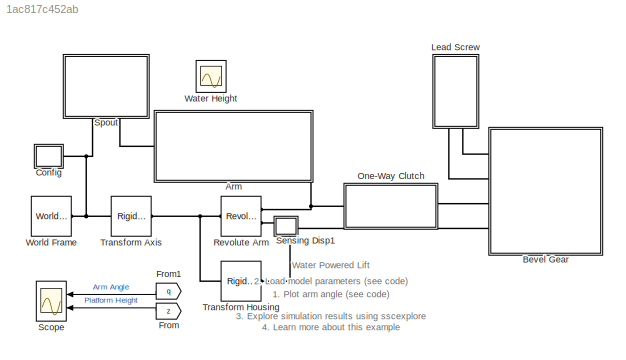
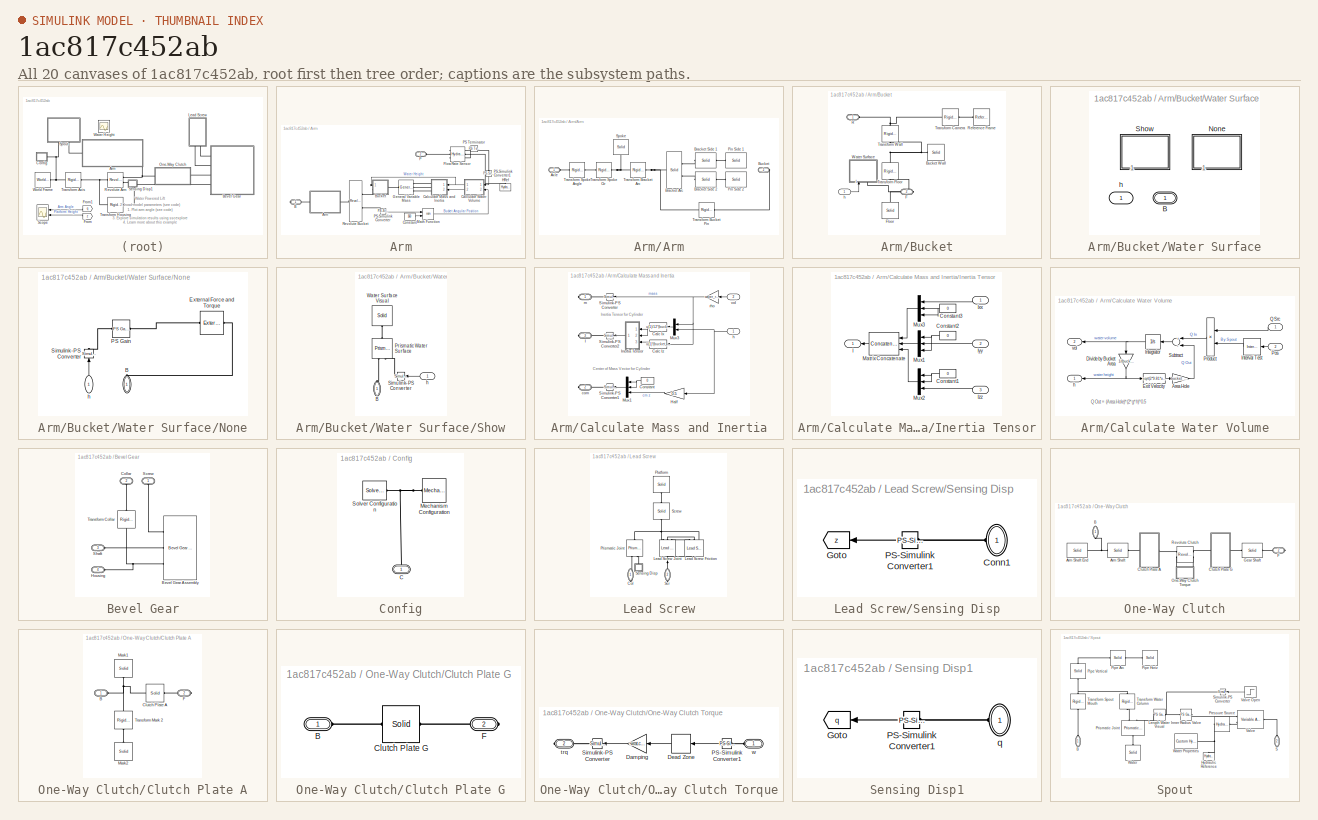
[diagram: thumbnail index - all 20 canvases of the model, root first then tree order]
MODEL slx_1ac817c452ab
KIND model
CONFIG AbsTol = 1e-4
CONFIG EnableMultiTasking = on
CONFIG FixedStep = auto
CONFIG MaxStep = 1e-2
CONFIG MinStep = auto
CONFIG RelTol = 1e-3
CONFIG SampleTimeConstraint = Unconstrained
CONFIG Solver = ode15s
CONFIG SolverName = ode15s
CONFIG StartTime = 0.0
CONFIG StopTime = 50
BLOCK [SubSystem] Arm
  Ports = [0, 0, 0, 0, 0, 1, 1]
  RequestExecContextInheritance = off
BLOCK [SubSystem] Arm/Arm
  Ports = [0, 0, 0, 0, 0, 1, 1]
  RequestExecContextInheritance = off
BLOCK [PMIOPort] Arm/Arm/Axle
  Side = Left
BLOCK [Reference] Arm/Arm/Bracket Arc  REF=sm_lib/Body Elements/Solid
  Ports = [0, 0, 0, 0, 0, 2, 1]
  SourceBlock = sm_lib/Body Elements/Solid
  SourceProductBaseCode = MS
  SourceProductName = Simscape Multibody
  SourceType = Solid
BLOCK [Reference] Arm/Arm/Bracket Side 1  REF=sm_lib/Body Elements/Solid
  Ports = [0, 0, 0, 0, 0, 1, 1]
  SourceBlock = sm_lib/Body Elements/Solid
  SourceProductBaseCode = MS
  SourceProductName = Simscape Multibody
  SourceType = Solid
BLOCK [Reference] Arm/Arm/Bracket Side 2  REF=sm_lib/Body Elements/Solid
  Ports = [0, 0, 0, 0, 0, 1, 1]
  SourceBlock = sm_lib/Body Elements/Solid
  SourceProductBaseCode = MS
  SourceProductName = Simscape Multibody
  SourceType = Solid
BLOCK [PMIOPort] Arm/Arm/Bucket
  Port = 2
  Side = Right
BLOCK [Reference] Arm/Arm/Pin Side 1  REF=sm_lib/Body Elements/Solid
  Ports = [0, 0, 0, 0, 0, 1]
  SourceBlock = sm_lib/Body Elements/Solid
  SourceProductBaseCode = MS
  SourceProductName = Simscape Multibody
  SourceType = Solid
BLOCK [Reference] Arm/Arm/Pin Side 2  REF=sm_lib/Body Elements/Solid
  Ports = [0, 0, 0, 0, 0, 1]
  SourceBlock = sm_lib/Body Elements/Solid
  SourceProductBaseCode = MS
  SourceProductName = Simscape Multibody
  SourceType = Solid
BLOCK [Reference] Arm/Arm/Spoke  REF=sm_lib/Body Elements/Solid
  Ports = [0, 0, 0, 0, 0, 0, 1]
  SourceBlock = sm_lib/Body Elements/Solid
  SourceProductBaseCode = MS
  SourceProductName = Simscape Multibody
  SourceType = Solid
BLOCK [Reference] Arm/Arm/Transform Bracket Arc  REF=sm_lib/Frames and
Transforms/Rigid
Transform
  Ports = [0, 0, 0, 0, 0, 1, 1]
  SourceBlock = sm_lib/Frames and\nTransforms/Rigid\nTransform
  SourceProductBaseCode = MS
  SourceProductName = Simscape Multibody
  SourceType = Rigid\nTransform
BLOCK [Reference] Arm/Arm/Transform Bucket Pin  REF=sm_lib/Frames and
Transforms/Rigid
Transform
  Ports = [0, 0, 0, 0, 0, 1, 1]
  SourceBlock = sm_lib/Frames and\nTransforms/Rigid\nTransform
  SourceProductBaseCode = MS
  SourceProductName = Simscape Multibody
  SourceType = Rigid\nTransform
BLOCK [Reference] Arm/Arm/Transform Spoke Angle  REF=sm_lib/Frames and
Transforms/Rigid
Transform
  Ports = [0, 0, 0, 0, 0, 1, 1]
  SourceBlock = sm_lib/Frames and\nTransforms/Rigid\nTransform
  SourceProductBaseCode = MS
  SourceProductName = Simscape Multibody
  SourceType = Rigid\nTransform
BLOCK [Reference] Arm/Arm/Transform Spoke Ctr  REF=sm_lib/Frames and
Transforms/Rigid
Transform
  Ports = [0, 0, 0, 0, 0, 1, 1]
  SourceBlock = sm_lib/Frames and\nTransforms/Rigid\nTransform
  SourceProductBaseCode = MS
  SourceProductName = Simscape Multibody
  SourceType = Rigid\nTransform
BLOCK [PMIOPort] Arm/B
  Side = Right
BLOCK [SubSystem] Arm/Bucket
  Ports = [1, 0, 0, 0, 0, 1, 1]
  RequestExecContextInheritance = off
BLOCK [Reference] Arm/Bucket/Bucket Wall  REF=sm_lib/Body Elements/Solid
  Ports = [0, 0, 0, 0, 0, 0, 1]
  SourceBlock = sm_lib/Body Elements/Solid
  SourceProductBaseCode = MS
  SourceProductName = Simscape Multibody
  SourceType = Solid
BLOCK [PMIOPort] Arm/Bucket/F
  Port = 2
  Side = Right
  Tag = PMCPort
BLOCK [Reference] Arm/Bucket/Floor  REF=sm_lib/Body Elements/Solid
  Ports = [0, 0, 0, 0, 0, 0, 1]
  SourceBlock = sm_lib/Body Elements/Solid
  SourceProductBaseCode = MS
  SourceProductName = Simscape Multibody
  SourceType = Solid
BLOCK [PMIOPort] Arm/Bucket/R
  Side = Left
BLOCK [Reference] Arm/Bucket/Reference Frame  REF=sm_lib/Frames and
Transforms/Reference
Frame
  Ports = [0, 0, 0, 0, 0, 0, 1]
  SourceBlock = sm_lib/Frames and\nTransforms/Reference\nFrame
  SourceProductBaseCode = MS
  SourceProductName = Simscape Multibody
  SourceType = Reference\nFrame
BLOCK [Reference] Arm/Bucket/Transform Camera  REF=sm_lib/Frames and
Transforms/Rigid
Transform
  Ports = [0, 0, 0, 0, 0, 1, 1]
  SourceBlock = sm_lib/Frames and\nTransforms/Rigid\nTransform
  SourceProductBaseCode = MS
  SourceProductName = Simscape Multibody
  SourceType = Rigid\nTransform
BLOCK [Reference] Arm/Bucket/Transform Floor  REF=sm_lib/Frames and
Transforms/Rigid
Transform
  Ports = [0, 0, 0, 0, 0, 1, 1]
  SourceBlock = sm_lib/Frames and\nTransforms/Rigid\nTransform
  SourceProductBaseCode = MS
  SourceProductName = Simscape Multibody
  SourceType = Rigid\nTransform
BLOCK [Reference] Arm/Bucket/Transform Wall  REF=sm_lib/Frames and
Transforms/Rigid
Transform
  Ports = [0, 0, 0, 0, 0, 1, 1]
  SourceBlock = sm_lib/Frames and\nTransforms/Rigid\nTransform
  SourceProductBaseCode = MS
  SourceProductName = Simscape Multibody
  SourceType = Rigid\nTransform
BLOCK [SubSystem] Arm/Bucket/Water Surface
  LabelModeActiveChoice = Show
  Ports = [1, 0, 0, 0, 0, 1]
  RequestExecContextInheritance = off
  Variant = on
  VariantControl = Variant1
  VariantControlMode = Label
BLOCK [PMIOPort] Arm/Bucket/Water Surface/ B 
  Side = Left
BLOCK [SubSystem] Arm/Bucket/Water Surface/None
  Ports = [1, 0, 0, 0, 0, 1]
  RequestExecContextInheritance = off
  VariantControl = None
BLOCK [PMIOPort] Arm/Bucket/Water Surface/None/B
  Side = Left
BLOCK [Reference] Arm/Bucket/Water Surface/None/External Force and Torque  REF=sm_lib/Forces and
Torques/External Force
and Torque
  Ports = [0, 0, 0, 0, 0, 1, 1]
  SourceBlock = sm_lib/Forces and\nTorques/External Force\nand Torque
  SourceProductBaseCode = MS
  SourceProductName = Simscape Multibody
  SourceType = External Force\nand Torque
BLOCK [Reference] Arm/Bucket/Water Surface/None/PS Gain  REF=fl_ps_legacy_lib/Legacy Physical
Signals/Functions/PS Gain
  Ports = [0, 0, 0, 0, 0, 1, 1]
  SourceBlock = fl_ps_legacy_lib/Legacy Physical\nSignals/Functions/PS Gain
  SourceProductBaseCode = SS
  SourceProductName = Simscape
  SourceType = PS Gain
BLOCK [Reference] Arm/Bucket/Water Surface/None/Simulink-PS Converter  REF=nesl_utility/Simulink-PS
Converter
  Ports = [1, 0, 0, 0, 0, 0, 1]
  SourceBlock = nesl_utility/Simulink-PS\nConverter
  SourceProductBaseCode = SS
  SourceProductName = Simscape
  SourceType = Simulink-PS\nConverter
BLOCK [Inport] Arm/Bucket/Water Surface/None/h
  IconDisplay = Port number
BLOCK [SubSystem] Arm/Bucket/Water Surface/Show
  Ports = [1, 0, 0, 0, 0, 1]
  RequestExecContextInheritance = off
  VariantControl = Show
BLOCK [PMIOPort] Arm/Bucket/Water Surface/Show/B
  Side = Left
BLOCK [Reference] Arm/Bucket/Water Surface/Show/Prismatic Water Surface  REF=sm_lib/Joints/Prismatic
Joint
  Ports = [0, 0, 0, 0, 0, 2, 1]
  SourceBlock = sm_lib/Joints/Prismatic\nJoint
  SourceProductBaseCode = MS
  SourceProductName = Simscape Multibody
  SourceType = Prismatic\nJoint
BLOCK [Reference] Arm/Bucket/Water Surface/Show/Simulink-PS Converter  REF=nesl_utility/Simulink-PS
Converter
  Ports = [1, 0, 0, 0, 0, 0, 1]
  SourceBlock = nesl_utility/Simulink-PS\nConverter
  SourceProductBaseCode = SS
  SourceProductName = Simscape
  SourceType = Simulink-PS\nConverter
BLOCK [Reference] Arm/Bucket/Water Surface/Show/Water Surface Visual  REF=sm_lib/Body Elements/Solid
  Ports = [0, 0, 0, 0, 0, 0, 1]
  SourceBlock = sm_lib/Body Elements/Solid
  SourceProductBaseCode = MS
  SourceProductName = Simscape Multibody
  SourceType = Solid
BLOCK [Inport] Arm/Bucket/Water Surface/Show/h
  IconDisplay = Port number
BLOCK [Inport] Arm/Bucket/Water Surface/h 
  IconDisplay = Port number
BLOCK [Inport] Arm/Bucket/h
  IconDisplay = Port number
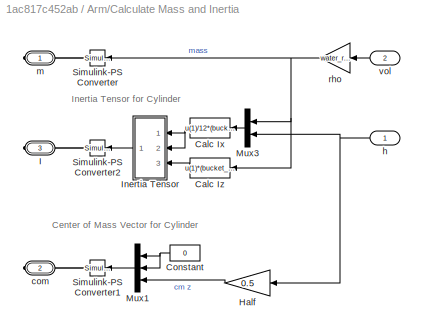
BLOCK [SubSystem] Arm/Calculate Mass and Inertia
  Ports = [2, 0, 0, 0, 0, 0, 3]
  RequestExecContextInheritance = off
BLOCK [Fcn] Arm/Calculate Mass and Inertia/Calc Ix
  Expr = u(1)/12*(bucket_side^2+u(2)^2)
BLOCK [Fcn] Arm/Calculate Mass and Inertia/Calc Iz
  Expr = u(1)*(bucket_side^2+bucket_side^2)/12
BLOCK [Constant] Arm/Calculate Mass and Inertia/Constant
  Value = 0
BLOCK [Gain] Arm/Calculate Mass and Inertia/Half
  Gain = 0.5
  OutDataTypeStr = Inherit: Inherit via internal rule
  ParamDataTypeStr = Inherit: Inherit via internal rule
  SaturateOnIntegerOverflow = off
BLOCK [PMIOPort] Arm/Calculate Mass and Inertia/I
  Port = 3
  Side = Right
BLOCK [SubSystem] Arm/Calculate Mass and Inertia/Inertia Tensor
  Ports = [3, 1]
  RequestExecContextInheritance = off
BLOCK [Constant] Arm/Calculate Mass and Inertia/Inertia Tensor/Constant1
  Value = 0
BLOCK [Constant] Arm/Calculate Mass and Inertia/Inertia Tensor/Constant2
  Value = 0
BLOCK [Constant] Arm/Calculate Mass and Inertia/Inertia Tensor/Constant3
  Value = 0
BLOCK [Outport] Arm/Calculate Mass and Inertia/Inertia Tensor/I
  IconDisplay = Port number
BLOCK [Inport] Arm/Calculate Mass and Inertia/Inertia Tensor/Ixx
  IconDisplay = Port number
BLOCK [Inport] Arm/Calculate Mass and Inertia/Inertia Tensor/Iyy
  IconDisplay = Port number
  Port = 2
BLOCK [Inport] Arm/Calculate Mass and Inertia/Inertia Tensor/Izz
  IconDisplay = Port number
  Port = 3
BLOCK [Concatenate] Arm/Calculate Mass and Inertia/Inertia Tensor/Matrix Concatenate
  ConcatenateDimension = 2
  Mode = Multidimensional array
  NumInputs = 3
  Ports = [3, 1]
BLOCK [Mux] Arm/Calculate Mass and Inertia/Inertia Tensor/Mux1
  DisplayOption = bar
  Inputs = 3
  Ports = [3, 1]
BLOCK [Mux] Arm/Calculate Mass and Inertia/Inertia Tensor/Mux2
  DisplayOption = bar
  Inputs = 3
  Ports = [3, 1]
BLOCK [Mux] Arm/Calculate Mass and Inertia/Inertia Tensor/Mux3
  DisplayOption = bar
  Inputs = 3
  Ports = [3, 1]
BLOCK [Mux] Arm/Calculate Mass and Inertia/Mux1
  DisplayOption = bar
  Inputs = 3
  Ports = [3, 1]
BLOCK [Mux] Arm/Calculate Mass and Inertia/Mux3
  DisplayOption = bar
  Inputs = 2
  Ports = [2, 1]
BLOCK [Reference] Arm/Calculate Mass and Inertia/Simulink-PS Converter  REF=nesl_utility/Simulink-PS
Converter
  Ports = [1, 0, 0, 0, 0, 0, 1]
  SourceBlock = nesl_utility/Simulink-PS\nConverter
  SourceProductBaseCode = SS
  SourceProductName = Simscape
  SourceType = Simulink-PS\nConverter
BLOCK [Reference] Arm/Calculate Mass and Inertia/Simulink-PS Converter1  REF=nesl_utility/Simulink-PS
Converter
  Ports = [1, 0, 0, 0, 0, 0, 1]
  SourceBlock = nesl_utility/Simulink-PS\nConverter
  SourceProductBaseCode = SS
  SourceProductName = Simscape
  SourceType = Simulink-PS\nConverter
BLOCK [Reference] Arm/Calculate Mass and Inertia/Simulink-PS Converter2  REF=nesl_utility/Simulink-PS
Converter
  Ports = [1, 0, 0, 0, 0, 0, 1]
  SourceBlock = nesl_utility/Simulink-PS\nConverter
  SourceProductBaseCode = SS
  SourceProductName = Simscape
  SourceType = Simulink-PS\nConverter
BLOCK [PMIOPort] Arm/Calculate Mass and Inertia/com
  Port = 2
  Side = Right
BLOCK [Inport] Arm/Calculate Mass and Inertia/h
  IconDisplay = Port number
BLOCK [PMIOPort] Arm/Calculate Mass and Inertia/m
  Side = Right
BLOCK [Gain] Arm/Calculate Mass and Inertia/rho
  Gain = water_rho
  OutDataTypeStr = Inherit: Inherit via internal rule
  ParamDataTypeStr = Inherit: Inherit via internal rule
  SaturateOnIntegerOverflow = off
BLOCK [Inport] Arm/Calculate Mass and Inertia/vol
  IconDisplay = Port number
  Port = 2
BLOCK [SubSystem] Arm/Calculate Water Volume
  Ports = [2, 2]
  RequestExecContextInheritance = off
BLOCK [Gain] Arm/Calculate Water Volume/Area Hole
  Gain = bucket_hole_side^2
  OutDataTypeStr = Inherit: Inherit via internal rule
  ParamDataTypeStr = Inherit: Inherit via internal rule
  SaturateOnIntegerOverflow = off
BLOCK [Gain] Arm/Calculate Water Volume/Divide by Bucket Area
  Gain = 1/(bucket_side^2)
  OutDataTypeStr = Inherit: Inherit via internal rule
  ParamDataTypeStr = Inherit: Inherit via internal rule
  SaturateOnIntegerOverflow = off
BLOCK [Fcn] Arm/Calculate Water Volume/Exit Velocity
  Expr = sqrt(2*9.81*u(1))
BLOCK [Integrator] Arm/Calculate Water Volume/Integrator
  LimitOutput = on
  LowerSaturationLimit = 0
  Ports = [1, 1]
  UpperSaturationLimit = (bucket_side^2)*bucket_height
BLOCK [Reference] Arm/Calculate Water Volume/Interval Test  REF=simulink/Logic and Bit
Operations/Interval Test
  Ports = [1, 1]
  SourceBlock = simulink/Logic and Bit\nOperations/Interval Test
  SourceProductBaseCode = SL
  SourceProductName = Simulink
  SourceType = Interval Test
BLOCK [Inport] Arm/Calculate Water Volume/Pos
  IconDisplay = Port number
  Port = 2
BLOCK [Product] Arm/Calculate Water Volume/Product
  InputSameDT = off
  OutDataTypeStr = Inherit: Inherit via internal rule
  Ports = [2, 1]
  RndMeth = Floor
  SaturateOnIntegerOverflow = off
BLOCK [Inport] Arm/Calculate Water Volume/Q Src
  IconDisplay = Port number
BLOCK [Sum] Arm/Calculate Water Volume/Subtract
  InputSameDT = off
  Inputs = +-
  OutDataTypeStr = Inherit: Inherit via internal rule
  Ports = [2, 1]
  SaturateOnIntegerOverflow = off
BLOCK [Outport] Arm/Calculate Water Volume/h
  IconDisplay = Port number
BLOCK [Outport] Arm/Calculate Water Volume/vol
  IconDisplay = Port number
  Port = 2
BLOCK [Constant] Arm/Constant
  Value = 360
BLOCK [Reference] Arm/Flow Rate Sensor  REF=fl_lib/Hydraulic/Hydraulic Sensors/Hydraulic Flow Rate
Sensor
  Ports = [0, 0, 0, 0, 0, 1, 3]
  SourceBlock = fl_lib/Hydraulic/Hydraulic Sensors/Hydraulic Flow Rate\nSensor
  SourceProductBaseCode = SS
  SourceProductName = Simscape
  SourceType = Hydraulic Flow Rate\nSensor
BLOCK [Reference] Arm/General Variable Mass  REF=sm_lib/Body Elements/Variable Mass/General
Variable Mass
  Ports = [0, 0, 0, 0, 0, 3, 1]
  SourceBlock = sm_lib/Body Elements/Variable Mass/General\nVariable Mass
  SourceProductBaseCode = MS
  SourceProductName = Simscape Multibody
  SourceType = General\nVariable Mass
BLOCK [Reference] Arm/HRef  REF=fl_lib/Hydraulic/Hydraulic Elements/Hydraulic Reference
  Ports = [0, 0, 0, 0, 0, 1]
  SourceBlock = fl_lib/Hydraulic/Hydraulic Elements/Hydraulic Reference
  SourceProductBaseCode = SS
  SourceProductName = Simscape
  SourceType = Hydraulic Reference
BLOCK [Math] Arm/Math Function
  Operator = rem
  Ports = [2, 1]
BLOCK [PMIOPort] Arm/P
  Port = 2
  Side = Left
BLOCK [Reference] Arm/PS Terminator  REF=fl_lib/Physical Signals/Sinks/PS Terminator
  Ports = [0, 0, 0, 0, 0, 1]
  SourceBlock = fl_lib/Physical Signals/Sinks/PS Terminator
  SourceProductBaseCode = SS
  SourceProductName = Simscape
  SourceType = PS Terminator
BLOCK [Reference] Arm/PS-Simulink Converter  REF=nesl_utility/PS-Simulink
Converter
  Ports = [0, 1, 0, 0, 0, 1]
  SourceBlock = nesl_utility/PS-Simulink\nConverter
  SourceProductBaseCode = SS
  SourceProductName = Simscape
  SourceType = PS-Simulink\nConverter
BLOCK [Reference] Arm/PS-Simulink Converter1  REF=nesl_utility/PS-Simulink
Converter
  Ports = [0, 1, 0, 0, 0, 1]
  SourceBlock = nesl_utility/PS-Simulink\nConverter
  SourceProductBaseCode = SS
  SourceProductName = Simscape
  SourceType = PS-Simulink\nConverter
BLOCK [Reference] Arm/Revolute Bucket  REF=sm_lib/Joints/Revolute Joint
  Ports = [0, 0, 0, 0, 0, 1, 2]
  SourceBlock = sm_lib/Joints/Revolute Joint
  SourceProductBaseCode = MS
  SourceProductName = Simscape Multibody
  SourceType = Revolute Joint
BLOCK [SubSystem] Bevel Gear
  Ports = [0, 0, 0, 0, 0, 4]
  RequestExecContextInheritance = off
BLOCK [Reference] Bevel Gear/Bevel Gear Assembly  REF=Multibody_Parts_Lib/Gears/Assemblies/Bevel Gear Assembly
  Ports = [0, 0, 0, 0, 0, 3]
  SourceBlock = Multibody_Parts_Lib/Gears/Assemblies/Bevel Gear Assembly
  SourceProductName = Simscape Multibody Parts Library
  SourceType = Bevel Gear Assembly
  Tag = PublishSubsystem
BLOCK [PMIOPort] Bevel Gear/Collar
  Port = 2
  Side = Left
BLOCK [PMIOPort] Bevel Gear/Housing
  Port = 4
  Side = Left
BLOCK [PMIOPort] Bevel Gear/Screw
  Side = Left
BLOCK [PMIOPort] Bevel Gear/Shaft
  Port = 3
  Side = Left
BLOCK [Reference] Bevel Gear/Transform Collar  REF=sm_lib/Frames and
Transforms/Rigid
Transform
  Ports = [0, 0, 0, 0, 0, 1, 1]
  SourceBlock = sm_lib/Frames and\nTransforms/Rigid\nTransform
  SourceProductBaseCode = MS
  SourceProductName = Simscape Multibody
  SourceType = Rigid\nTransform
BLOCK [SubSystem] Config
  Ports = [0, 0, 0, 0, 0, 1]
  RequestExecContextInheritance = off
BLOCK [PMIOPort] Config/C
  Side = Left
BLOCK [Reference] Config/Mechanism Configuration  REF=sm_lib/Utilities/Mechanism
Configuration
  Ports = [0, 0, 0, 0, 0, 0, 1]
  SourceBlock = sm_lib/Utilities/Mechanism\nConfiguration
  SourceProductBaseCode = MS
  SourceProductName = Simscape Multibody
  SourceType = Mechanism\nConfiguration
BLOCK [Reference] Config/Solver Configuration  REF=nesl_utility/Solver
Configuration
  Ports = [0, 0, 0, 0, 0, 0, 1]
  SourceBlock = nesl_utility/Solver\nConfiguration
  SourceProductBaseCode = SS
  SourceProductName = Simscape
  SourceType = Solver\nConfiguration
BLOCK [From] From
  GotoTag = z
  TagVisibility = global
BLOCK [From] From1
  GotoTag = q
  TagVisibility = global
BLOCK [SubSystem] Lead Screw
  Ports = [0, 0, 0, 0, 0, 0, 2]
  RequestExecContextInheritance = off
BLOCK [PMIOPort] Lead Screw/Col
  Side = Right
BLOCK [Reference] Lead Screw/Lead Screw Friction  REF=Multibody_Parts_Lib/Gears/Forces/Lead Screw Friction
  AttributesFormatString = Lead Angle = 14.856 deg\nKinetic Friction = 0.300
  Ports = [0, 0, 0, 0, 0, 3, 1]
  SourceBlock = Multibody_Parts_Lib/Gears/Forces/Lead Screw Friction
  SourceProductName = Simscape Multibody Parts Library
  SourceType = Lead Screw Friction
  Tag = PublishSubsystem
BLOCK [Reference] Lead Screw/Lead Screw Joint  REF=sm_lib/Joints/Lead Screw
Joint
  Ports = [0, 0, 0, 0, 0, 1, 3]
  SourceBlock = sm_lib/Joints/Lead Screw\nJoint
  SourceProductBaseCode = MS
  SourceProductName = Simscape Multibody
  SourceType = Lead Screw\nJoint
BLOCK [Reference] Lead Screw/Platform  REF=sm_lib/Body Elements/Solid
  Ports = [0, 0, 0, 0, 0, 0, 1]
  SourceBlock = sm_lib/Body Elements/Solid
  SourceProductBaseCode = MS
  SourceProductName = Simscape Multibody
  SourceType = Solid
BLOCK [Reference] Lead Screw/Prismatic Joint  REF=sm_lib/Joints/Prismatic
Joint
  Ports = [0, 0, 0, 0, 0, 1, 2]
  SourceBlock = sm_lib/Joints/Prismatic\nJoint
  SourceProductBaseCode = MS
  SourceProductName = Simscape Multibody
  SourceType = Prismatic\nJoint
BLOCK [PMIOPort] Lead Screw/Scr
  Port = 2
  Side = Right
BLOCK [Reference] Lead Screw/Screw  REF=sm_lib/Body Elements/Solid
  Ports = [0, 0, 0, 0, 0, 1, 1]
  SourceBlock = sm_lib/Body Elements/Solid
  SourceProductBaseCode = MS
  SourceProductName = Simscape Multibody
  SourceType = Solid
BLOCK [SubSystem] Lead Screw/Sensing Disp
  Ports = [0, 0, 0, 0, 0, 1]
  RequestExecContextInheritance = off
BLOCK [PMIOPort] Lead Screw/Sensing Disp/Conn1
  Side = Left
BLOCK [Goto] Lead Screw/Sensing Disp/Goto
  GotoTag = z
  TagVisibility = global
BLOCK [Reference] Lead Screw/Sensing Disp/PS-Simulink Converter1  REF=nesl_utility/PS-Simulink
Converter
  Ports = [0, 1, 0, 0, 0, 1]
  SourceBlock = nesl_utility/PS-Simulink\nConverter
  SourceProductBaseCode = SS
  SourceProductName = Simscape
  SourceType = PS-Simulink\nConverter
BLOCK [SubSystem] One-Way Clutch
  Ports = [0, 0, 0, 0, 0, 1, 1]
  RequestExecContextInheritance = off
BLOCK [Reference] One-Way Clutch/Arm Shaft  REF=sm_lib/Body Elements/Solid
  Ports = [0, 0, 0, 0, 0, 1, 1]
  SourceBlock = sm_lib/Body Elements/Solid
  SourceProductBaseCode = MS
  SourceProductName = Simscape Multibody
  SourceType = Solid
BLOCK [Reference] One-Way Clutch/Arm Shaft End  REF=sm_lib/Body Elements/Solid
  Ports = [0, 0, 0, 0, 0, 1]
  SourceBlock = sm_lib/Body Elements/Solid
  SourceProductBaseCode = MS
  SourceProductName = Simscape Multibody
  SourceType = Solid
BLOCK [PMIOPort] One-Way Clutch/B
  Side = Left
BLOCK [SubSystem] One-Way Clutch/Clutch Plate A
  Ports = [0, 0, 0, 0, 0, 1, 1]
  RequestExecContextInheritance = off
BLOCK [PMIOPort] One-Way Clutch/Clutch Plate A/B
  Side = Left
BLOCK [Reference] One-Way Clutch/Clutch Plate A/Clutch Plate A  REF=sm_lib/Body Elements/Solid
  Ports = [0, 0, 0, 0, 0, 1, 1]
  SourceBlock = sm_lib/Body Elements/Solid
  SourceProductBaseCode = MS
  SourceProductName = Simscape Multibody
  SourceType = Solid
BLOCK [PMIOPort] One-Way Clutch/Clutch Plate A/F
  Port = 2
  Side = Right
BLOCK [Reference] One-Way Clutch/Clutch Plate A/Mark1  REF=sm_lib/Body Elements/Solid
  Ports = [0, 0, 0, 0, 0, 0, 1]
  SourceBlock = sm_lib/Body Elements/Solid
  SourceProductBaseCode = MS
  SourceProductName = Simscape Multibody
  SourceType = Solid
BLOCK [Reference] One-Way Clutch/Clutch Plate A/Mark2  REF=sm_lib/Body Elements/Solid
  Ports = [0, 0, 0, 0, 0, 0, 1]
  SourceBlock = sm_lib/Body Elements/Solid
  SourceProductBaseCode = MS
  SourceProductName = Simscape Multibody
  SourceType = Solid
BLOCK [Reference] One-Way Clutch/Clutch Plate A/Transform Mark 2  REF=sm_lib/Frames and
Transforms/Rigid
Transform
  Ports = [0, 0, 0, 0, 0, 1, 1]
  SourceBlock = sm_lib/Frames and\nTransforms/Rigid\nTransform
  SourceProductBaseCode = MS
  SourceProductName = Simscape Multibody
  SourceType = Rigid\nTransform
BLOCK [SubSystem] One-Way Clutch/Clutch Plate G
  Ports = [0, 0, 0, 0, 0, 1, 1]
  RequestExecContextInheritance = off
BLOCK [PMIOPort] One-Way Clutch/Clutch Plate G/B
  Side = Left
BLOCK [Reference] One-Way Clutch/Clutch Plate G/Clutch Plate G  REF=sm_lib/Body Elements/Solid
  Ports = [0, 0, 0, 0, 0, 1, 1]
  SourceBlock = sm_lib/Body Elements/Solid
  SourceProductBaseCode = MS
  SourceProductName = Simscape Multibody
  SourceType = Solid
BLOCK [PMIOPort] One-Way Clutch/Clutch Plate G/F
  Port = 2
  Side = Right
BLOCK [PMIOPort] One-Way Clutch/F
  Port = 2
  Side = Right
BLOCK [Reference] One-Way Clutch/Gear Shaft  REF=sm_lib/Body Elements/Solid
  Ports = [0, 0, 0, 0, 0, 1, 1]
  SourceBlock = sm_lib/Body Elements/Solid
  SourceProductBaseCode = MS
  SourceProductName = Simscape Multibody
  SourceType = Solid
BLOCK [SubSystem] One-Way Clutch/One-Way Clutch Torque
  Ports = [0, 0, 0, 0, 0, 1, 1]
  RequestExecContextInheritance = off
BLOCK [Gain] One-Way Clutch/One-Way Clutch Torque/Damping
  Gain = -wrat.clutch.w2trq_gain
  OutDataTypeStr = Inherit: Inherit via internal rule
  ParamDataTypeStr = Inherit: Inherit via internal rule
  SaturateOnIntegerOverflow = off
BLOCK [DeadZone] One-Way Clutch/One-Way Clutch Torque/Dead Zone
  LowerValue = -inf
  UpperValue = 0
  ZeroCross = off
BLOCK [Reference] One-Way Clutch/One-Way Clutch Torque/PS-Simulink Converter1  REF=nesl_utility/PS-Simulink
Converter
  Ports = [0, 1, 0, 0, 0, 1]
  SourceBlock = nesl_utility/PS-Simulink\nConverter
  SourceProductBaseCode = SS
  SourceProductName = Simscape
  SourceType = PS-Simulink\nConverter
BLOCK [Reference] One-Way Clutch/One-Way Clutch Torque/Simulink-PS Converter  REF=nesl_utility/Simulink-PS
Converter
  Ports = [1, 0, 0, 0, 0, 0, 1]
  SourceBlock = nesl_utility/Simulink-PS\nConverter
  SourceProductBaseCode = SS
  SourceProductName = Simscape
  SourceType = Simulink-PS\nConverter
BLOCK [PMIOPort] One-Way Clutch/One-Way Clutch Torque/trq
  Port = 2
  Side = Right
BLOCK [PMIOPort] One-Way Clutch/One-Way Clutch Torque/w
  Side = Left
BLOCK [Reference] One-Way Clutch/Revolute Clutch  REF=sm_lib/Joints/Revolute Joint
  Ports = [0, 0, 0, 0, 0, 2, 2]
  SourceBlock = sm_lib/Joints/Revolute Joint
  SourceProductBaseCode = MS
  SourceProductName = Simscape Multibody
  SourceType = Revolute Joint
BLOCK [Reference] Revolute Arm  REF=sm_lib/Joints/Revolute Joint
  Ports = [0, 0, 0, 0, 0, 1, 2]
  SourceBlock = sm_lib/Joints/Revolute Joint
  SourceProductBaseCode = MS
  SourceProductName = Simscape Multibody
  SourceType = Revolute Joint
BLOCK [Scope] Scope
  Floating = off
  NumInputPorts = 2
  Ports = [2]
  ScopeSpecificationString = Simulink.scopes.TimeScopeBlockCfg('CurrentConfiguration', extmgr.ConfigurationSet(extmgr.Configuration('Core','General UI',true),extmgr.Configuration('Core','Source UI',true),extmgr.Configuration('Sources','WiredSimulink',true,'DataLoggingVariableName','ScopeData1'),extmgr.Configuration('Visuals','Time Domain',true,'SerializedDisplays',{struct('MinYLimReal','-18.72034','MaxYLimReal','24.90299','YL...<+2011ch>
BLOCK [SubSystem] Sensing Disp1
  Ports = [0, 0, 0, 0, 0, 1]
  RequestExecContextInheritance = off
BLOCK [Goto] Sensing Disp1/Goto
  GotoTag = q
  TagVisibility = global
BLOCK [Reference] Sensing Disp1/PS-Simulink Converter1  REF=nesl_utility/PS-Simulink
Converter
  Ports = [0, 1, 0, 0, 0, 1]
  SourceBlock = nesl_utility/PS-Simulink\nConverter
  SourceProductBaseCode = SS
  SourceProductName = Simscape
  SourceType = PS-Simulink\nConverter
BLOCK [PMIOPort] Sensing Disp1/q
  Side = Left
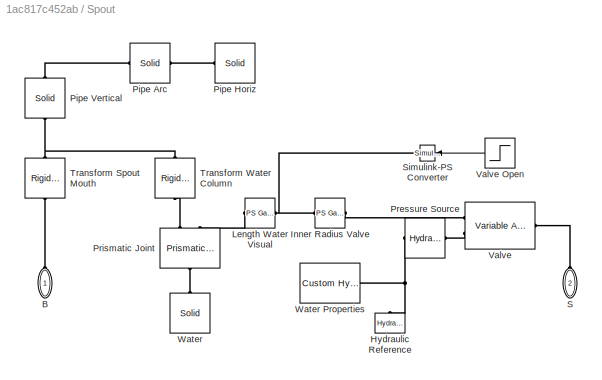
BLOCK [SubSystem] Spout
  Ports = [0, 0, 0, 0, 0, 2]
  RequestExecContextInheritance = off
BLOCK [PMIOPort] Spout/B
  Side = Left
BLOCK [Reference] Spout/Hydraulic Reference  REF=fl_lib/Hydraulic/Hydraulic Elements/Hydraulic Reference
  Ports = [0, 0, 0, 0, 0, 1]
  SourceBlock = fl_lib/Hydraulic/Hydraulic Elements/Hydraulic Reference
  SourceProductBaseCode = SS
  SourceProductName = Simscape
  SourceType = Hydraulic Reference
BLOCK [Reference] Spout/Inner Radius Valve   REF=fl_lib/Physical Signals/Functions/PS Gain
  Ports = [0, 0, 0, 0, 0, 1, 1]
  SourceBlock = fl_lib/Physical Signals/Functions/PS Gain
  SourceProductBaseCode = SS
  SourceProductName = Simscape
  SourceType = PS Gain
BLOCK [Reference] Spout/Length Water Visual  REF=fl_lib/Physical Signals/Functions/PS Gain
  Ports = [0, 0, 0, 0, 0, 1, 1]
  SourceBlock = fl_lib/Physical Signals/Functions/PS Gain
  SourceProductBaseCode = SS
  SourceProductName = Simscape
  SourceType = PS Gain
BLOCK [Reference] Spout/Pipe Arc  REF=sm_lib/Body Elements/Solid
  Ports = [0, 0, 0, 0, 0, 1, 1]
  SourceBlock = sm_lib/Body Elements/Solid
  SourceProductBaseCode = MS
  SourceProductName = Simscape Multibody
  SourceType = Solid
BLOCK [Reference] Spout/Pipe Horiz  REF=sm_lib/Body Elements/Solid
  Ports = [0, 0, 0, 0, 0, 1]
  SourceBlock = sm_lib/Body Elements/Solid
  SourceProductBaseCode = MS
  SourceProductName = Simscape Multibody
  SourceType = Solid
BLOCK [Reference] Spout/Pipe Vertical  REF=sm_lib/Body Elements/Solid
  Ports = [0, 0, 0, 0, 0, 1, 1]
  SourceBlock = sm_lib/Body Elements/Solid
  SourceProductBaseCode = MS
  SourceProductName = Simscape Multibody
  SourceType = Solid
BLOCK [Reference] Spout/Pressure Source  REF=fl_lib/Hydraulic/Hydraulic Sources/Hydraulic Constant
Pressure Source
  Ports = [0, 0, 0, 0, 0, 1, 1]
  SourceBlock = fl_lib/Hydraulic/Hydraulic Sources/Hydraulic Constant\nPressure Source
  SourceProductBaseCode = SS
  SourceProductName = Simscape
  SourceType = Hydraulic Constant\nPressure Source
BLOCK [Reference] Spout/Prismatic Joint  REF=sm_lib/Joints/Prismatic
Joint
  Ports = [0, 0, 0, 0, 0, 2, 1]
  SourceBlock = sm_lib/Joints/Prismatic\nJoint
  SourceProductBaseCode = MS
  SourceProductName = Simscape Multibody
  SourceType = Prismatic\nJoint
BLOCK [PMIOPort] Spout/S
  Port = 2
  Side = Left
BLOCK [Reference] Spout/Simulink-PS Converter  REF=nesl_utility/Simulink-PS
Converter
  Ports = [1, 0, 0, 0, 0, 0, 1]
  SourceBlock = nesl_utility/Simulink-PS\nConverter
  SourceProductBaseCode = SS
  SourceProductName = Simscape
  SourceType = Simulink-PS\nConverter
BLOCK [Reference] Spout/Transform Spout Mouth  REF=sm_lib/Frames and
Transforms/Rigid
Transform
  Ports = [0, 0, 0, 0, 0, 1, 1]
  SourceBlock = sm_lib/Frames and\nTransforms/Rigid\nTransform
  SourceProductBaseCode = MS
  SourceProductName = Simscape Multibody
  SourceType = Rigid\nTransform
BLOCK [Reference] Spout/Transform Water Column  REF=sm_lib/Frames and
Transforms/Rigid
Transform
  Ports = [0, 0, 0, 0, 0, 1, 1]
  SourceBlock = sm_lib/Frames and\nTransforms/Rigid\nTransform
  SourceProductBaseCode = MS
  SourceProductName = Simscape Multibody
  SourceType = Rigid\nTransform
BLOCK [Reference] Spout/Valve  REF=fl_lib/Hydraulic/Hydraulic Elements/Variable Area
Hydraulic Orifice
  Ports = [0, 0, 0, 0, 0, 2, 1]
  SourceBlock = fl_lib/Hydraulic/Hydraulic Elements/Variable Area\nHydraulic Orifice
  SourceProductBaseCode = SS
  SourceProductName = Simscape
  SourceType = Variable Area\nHydraulic Orifice
BLOCK [Step] Spout/Valve Open
  SampleTime = 0
  Time = 0.1
BLOCK [Reference] Spout/Water  REF=sm_lib/Body Elements/Solid
  Ports = [0, 0, 0, 0, 0, 0, 1]
  SourceBlock = sm_lib/Body Elements/Solid
  SourceProductBaseCode = MS
  SourceProductName = Simscape Multibody
  SourceType = Solid
BLOCK [Reference] Spout/Water Properties  REF=fl_lib/Hydraulic/Hydraulic Utilities/Custom Hydraulic
Fluid
  Ports = [0, 0, 0, 0, 0, 0, 1]
  SourceBlock = fl_lib/Hydraulic/Hydraulic Utilities/Custom Hydraulic\nFluid
  SourceProductBaseCode = SS
  SourceProductName = Simscape
  SourceType = Custom Hydraulic\nFluid
BLOCK [Reference] Transform Axis  REF=sm_lib/Frames and
Transforms/Rigid
Transform
  Ports = [0, 0, 0, 0, 0, 1, 1]
  SourceBlock = sm_lib/Frames and\nTransforms/Rigid\nTransform
  SourceProductBaseCode = MS
  SourceProductName = Simscape Multibody
  SourceType = Rigid\nTransform
BLOCK [Reference] Transform Housing  REF=sm_lib/Frames and
Transforms/Rigid
Transform
  Ports = [0, 0, 0, 0, 0, 1, 1]
  SourceBlock = sm_lib/Frames and\nTransforms/Rigid\nTransform
  SourceProductBaseCode = MS
  SourceProductName = Simscape Multibody
  SourceType = Rigid\nTransform
BLOCK [Scope] Water Height
  Floating = off
  IOType = viewer
  NumInputPorts = 1
  Ports = []
  ScopeSpecificationString = Simulink.scopes.TimeScopeBlockCfg('CurrentConfiguration', extmgr.ConfigurationSet(extmgr.Configuration('Core','General UI',true),extmgr.Configuration('Core','Source UI',true),extmgr.Configuration('Sources','WiredSimulink',true,'DataLoggingVariableName','ScopeData1'),extmgr.Configuration('Visuals','Time Domain',true,'SerializedDisplays',{struct('MinYLimReal','-0.02344','MaxYLimReal','0.21094','YLab...<+1404ch>
BLOCK [Reference] World Frame  REF=sm_lib/Frames and
Transforms/World Frame
  Ports = [0, 0, 0, 0, 0, 0, 1]
  SourceBlock = sm_lib/Frames and\nTransforms/World Frame
  SourceProductBaseCode = MS
  SourceProductName = Simscape Multibody
  SourceType = World Frame
ANNOTATION (root): 1. Plot arm angle ( see code ) 2. Load model parameters ( see code ) 3. Explore simulation results using sscexplore 4. Learn more about this example
ANNOTATION (root): Water Powered Lift
ANNOTATION Arm/Calculate Mass and Inertia: Center of Mass Vector for Cylinder
ANNOTATION Arm/Calculate Mass and Inertia: Inertia Tensor for Cylinder
ANNOTATION Arm/Calculate Water Volume: Q Out = (Area Hole)*(2*g*h)^0.5
LINE From1:1 -> Scope:1
LINE From:1 -> Scope:2
LINE Lead Screw/Sensing Disp/PS-Simulink Converter1:1 -> Lead Screw/Sensing Disp/Goto:1
LINE One-Way Clutch/One-Way Clutch Torque/Damping:1 -> One-Way Clutch/One-Way Clutch Torque/Simulink-PS Converter:1
LINE One-Way Clutch/One-Way Clutch Torque/Dead Zone:1 -> One-Way Clutch/One-Way Clutch Torque/Damping:1
LINE One-Way Clutch/One-Way Clutch Torque/PS-Simulink Converter1:1 -> One-Way Clutch/One-Way Clutch Torque/Dead Zone:1
LINE Sensing Disp1/PS-Simulink Converter1:1 -> Sensing Disp1/Goto:1
LINE Spout/Valve Open:1 -> Spout/Simulink-PS Converter:1
PLINE Arm:LConn1 -- Spout:LConn2
PNET net1: Arm:RConn1 -- One-Way Clutch:LConn1 -- Revolute Arm:RConn1
PLINE Bevel Gear/Bevel Gear Assembly:LConn1 -- Bevel Gear/Screw:RConn1
PLINE Bevel Gear/Bevel Gear Assembly:LConn2 -- Bevel Gear/Shaft:RConn1
PNET net2: Bevel Gear/Bevel Gear Assembly:LConn3 -- Bevel Gear/Housing:RConn1 -- Bevel Gear/Transform Collar:LConn1
PLINE Bevel Gear/Collar:RConn1 -- Bevel Gear/Transform Collar:RConn1
PLINE Bevel Gear:LConn1 -- Lead Screw:RConn2
PLINE Bevel Gear:LConn2 -- Lead Screw:RConn1
PLINE Bevel Gear:LConn3 -- One-Way Clutch:RConn1
PLINE Bevel Gear:LConn4 -- Transform Housing:RConn1
PNET net3: Config/C:RConn1 -- Config/Mechanism Configuration:RConn1 -- Config/Solver Configuration:RConn1
PNET net4: Config:LConn1 -- Spout:LConn1 -- Transform Axis:LConn1 -- World Frame:RConn1
PLINE Lead Screw/Col:RConn1 -- Lead Screw/Prismatic Joint:RConn1
PLINE Lead Screw/Lead Screw Friction:LConn1 -- Lead Screw/Lead Screw Joint:RConn3
PLINE Lead Screw/Lead Screw Friction:LConn2 -- Lead Screw/Lead Screw Joint:RConn2
PNET net5: Lead Screw/Lead Screw Friction:LConn3 -- Lead Screw/Lead Screw Joint:RConn1 -- Lead Screw/Prismatic Joint:LConn1 -- Lead Screw/Screw:RConn1
PNET net6: Lead Screw/Lead Screw Friction:RConn1 -- Lead Screw/Lead Screw Joint:LConn1 -- Lead Screw/Scr:RConn1
PLINE Lead Screw/Platform:RConn1 -- Lead Screw/Screw:LConn1
PLINE Lead Screw/Prismatic Joint:RConn2 -- Lead Screw/Sensing Disp:LConn1
PLINE Lead Screw/Sensing Disp/Conn1:RConn1 -- Lead Screw/Sensing Disp/PS-Simulink Converter1:LConn1
PNET net7: One-Way Clutch/Arm Shaft End:LConn1 -- One-Way Clutch/Arm Shaft:RConn1 -- One-Way Clutch/B:RConn1
PLINE One-Way Clutch/Arm Shaft:LConn1 -- One-Way Clutch/Clutch Plate A:LConn1
PNET net8: One-Way Clutch/Clutch Plate A/B:RConn1 -- One-Way Clutch/Clutch Plate A/Clutch Plate A:RConn1 -- One-Way Clutch/Clutch Plate A/Mark1:RConn1 -- One-Way Clutch/Clutch Plate A/Transform Mark 2:LConn1
PLINE One-Way Clutch/Clutch Plate A/Clutch Plate A:LConn1 -- One-Way Clutch/Clutch Plate A/F:RConn1
PLINE One-Way Clutch/Clutch Plate A/Mark2:RConn1 -- One-Way Clutch/Clutch Plate A/Transform Mark 2:RConn1
PLINE One-Way Clutch/Clutch Plate A:RConn1 -- One-Way Clutch/Revolute Clutch:LConn1
PLINE One-Way Clutch/Clutch Plate G/B:RConn1 -- One-Way Clutch/Clutch Plate G/Clutch Plate G:LConn1
PLINE One-Way Clutch/Clutch Plate G/Clutch Plate G:RConn1 -- One-Way Clutch/Clutch Plate G/F:RConn1
PLINE One-Way Clutch/Clutch Plate G:LConn1 -- One-Way Clutch/Revolute Clutch:RConn1
PLINE One-Way Clutch/Clutch Plate G:RConn1 -- One-Way Clutch/Gear Shaft:RConn1
PLINE One-Way Clutch/F:RConn1 -- One-Way Clutch/Gear Shaft:LConn1
PLINE One-Way Clutch/One-Way Clutch Torque/PS-Simulink Converter1:LConn1 -- One-Way Clutch/One-Way Clutch Torque/w:RConn1
PLINE One-Way Clutch/One-Way Clutch Torque/Simulink-PS Converter:RConn1 -- One-Way Clutch/One-Way Clutch Torque/trq:RConn1
PLINE One-Way Clutch/One-Way Clutch Torque:LConn1 -- One-Way Clutch/Revolute Clutch:RConn2
PLINE One-Way Clutch/One-Way Clutch Torque:RConn1 -- One-Way Clutch/Revolute Clutch:LConn2
PNET net9: Revolute Arm:LConn1 -- Transform Axis:RConn1 -- Transform Housing:LConn1
PLINE Revolute Arm:RConn2 -- Sensing Disp1:LConn1
PLINE Sensing Disp1/PS-Simulink Converter1:LConn1 -- Sensing Disp1/q:RConn1
PLINE Spout/B:RConn1 -- Spout/Transform Spout Mouth:LConn1
PNET net10: Spout/Hydraulic Reference:LConn1 -- Spout/Pressure Source:RConn1 -- Spout/Water Properties:RConn1
PNET net11: Spout/Inner Radius Valve :LConn1 -- Spout/Length Water Visual:LConn1 -- Spout/Simulink-PS Converter:RConn1
PLINE Spout/Inner Radius Valve :RConn1 -- Spout/Valve:LConn1
PLINE Spout/Length Water Visual:RConn1 -- Spout/Prismatic Joint:LConn2
PLINE Spout/Pipe Arc:LConn1 -- Spout/Pipe Vertical:LConn1
PLINE Spout/Pipe Arc:RConn1 -- Spout/Pipe Horiz:LConn1
PNET net12: Spout/Pipe Vertical:RConn1 -- Spout/Transform Spout Mouth:RConn1 -- Spout/Transform Water Column:LConn1
PLINE Spout/Pressure Source:LConn1 -- Spout/Valve:LConn2
PLINE Spout/Prismatic Joint:LConn1 -- Spout/Transform Water Column:RConn1
PLINE Spout/Prismatic Joint:RConn1 -- Spout/Water:RConn1
PLINE Spout/S:RConn1 -- Spout/Valve:RConn1
note: PNET lines group multi-terminal physical nets as a canonical sorted terminal list (undirected conserving connections); 2-terminal nets keep the pairwise PLINE form
